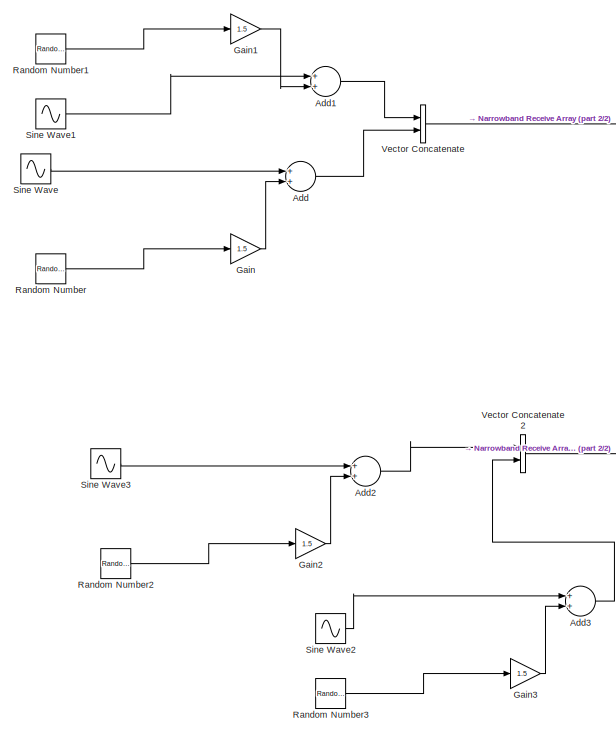
[diagram: root canvas - part 1/2, left side, full height]
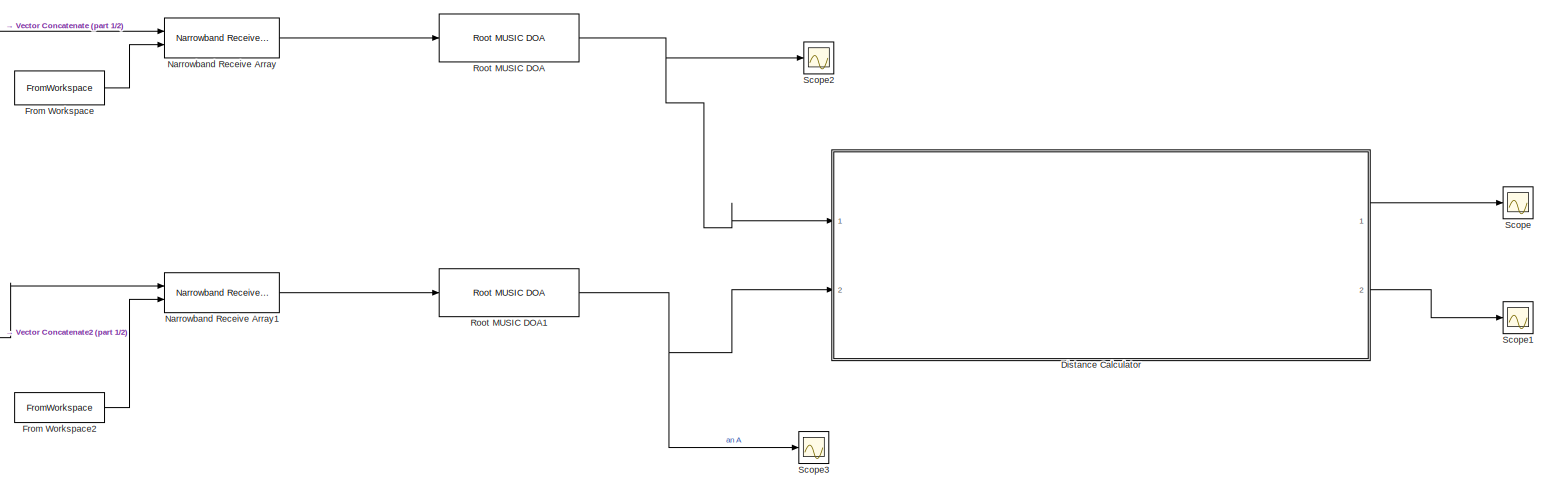
[diagram: root canvas - part 2/2, central region]
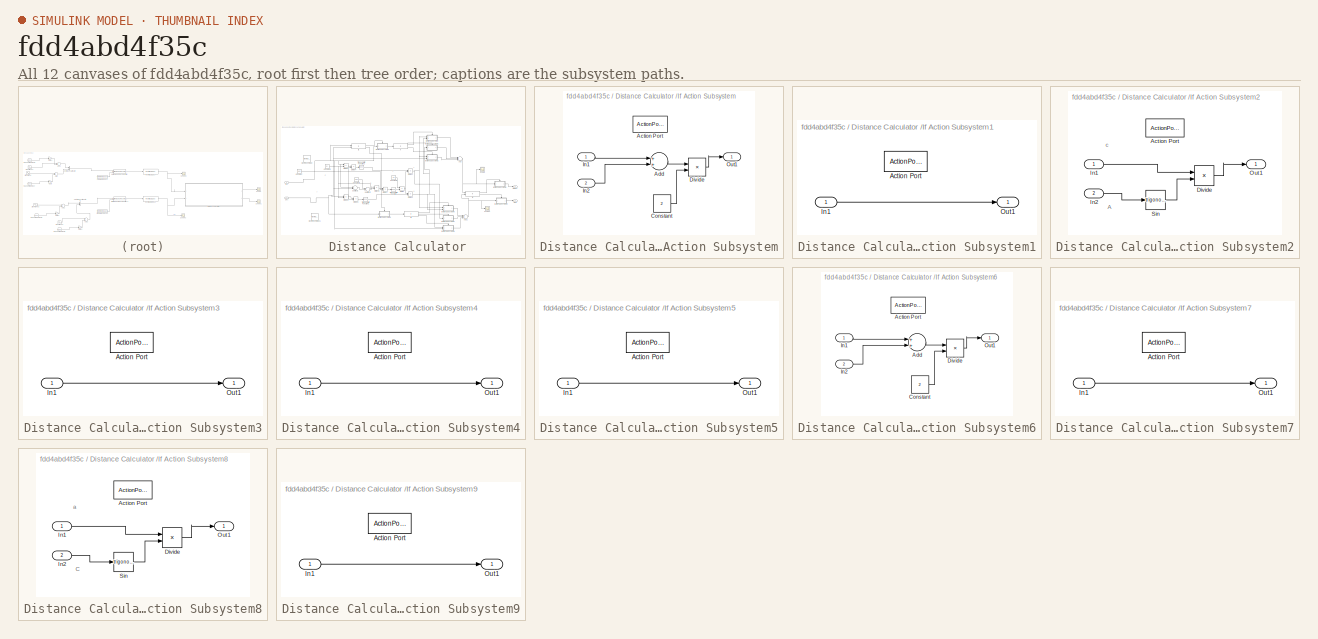
[diagram: thumbnail index - all 12 canvases of the model, root first then tree order]
MODEL slx_fdd4abd4f35c
KIND model
CONFIG AbsTol = auto
CONFIG EnableMultiTasking = off
CONFIG FixedStep = auto
CONFIG MaxStep = auto
CONFIG MinStep = auto
CONFIG RelTol = 1e-3
CONFIG SampleTimeConstraint = Unconstrained
CONFIG Solver = VariableStepAuto
CONFIG SolverName = VariableStepAuto
CONFIG StartTime = 0.0
CONFIG StopTime = 10.0
BLOCK [Sum] Add
  InputSameDT = off
  OutDataTypeStr = Inherit: Inherit via internal rule
  Ports = [2, 1]
  SaturateOnIntegerOverflow = off
BLOCK [Sum] Add1
  InputSameDT = off
  OutDataTypeStr = Inherit: Inherit via internal rule
  Ports = [2, 1]
  SaturateOnIntegerOverflow = off
BLOCK [Sum] Add2
  InputSameDT = off
  OutDataTypeStr = Inherit: Inherit via internal rule
  Ports = [2, 1]
  SaturateOnIntegerOverflow = off
BLOCK [Sum] Add3
  InputSameDT = off
  OutDataTypeStr = Inherit: Inherit via internal rule
  Ports = [2, 1]
  SaturateOnIntegerOverflow = off
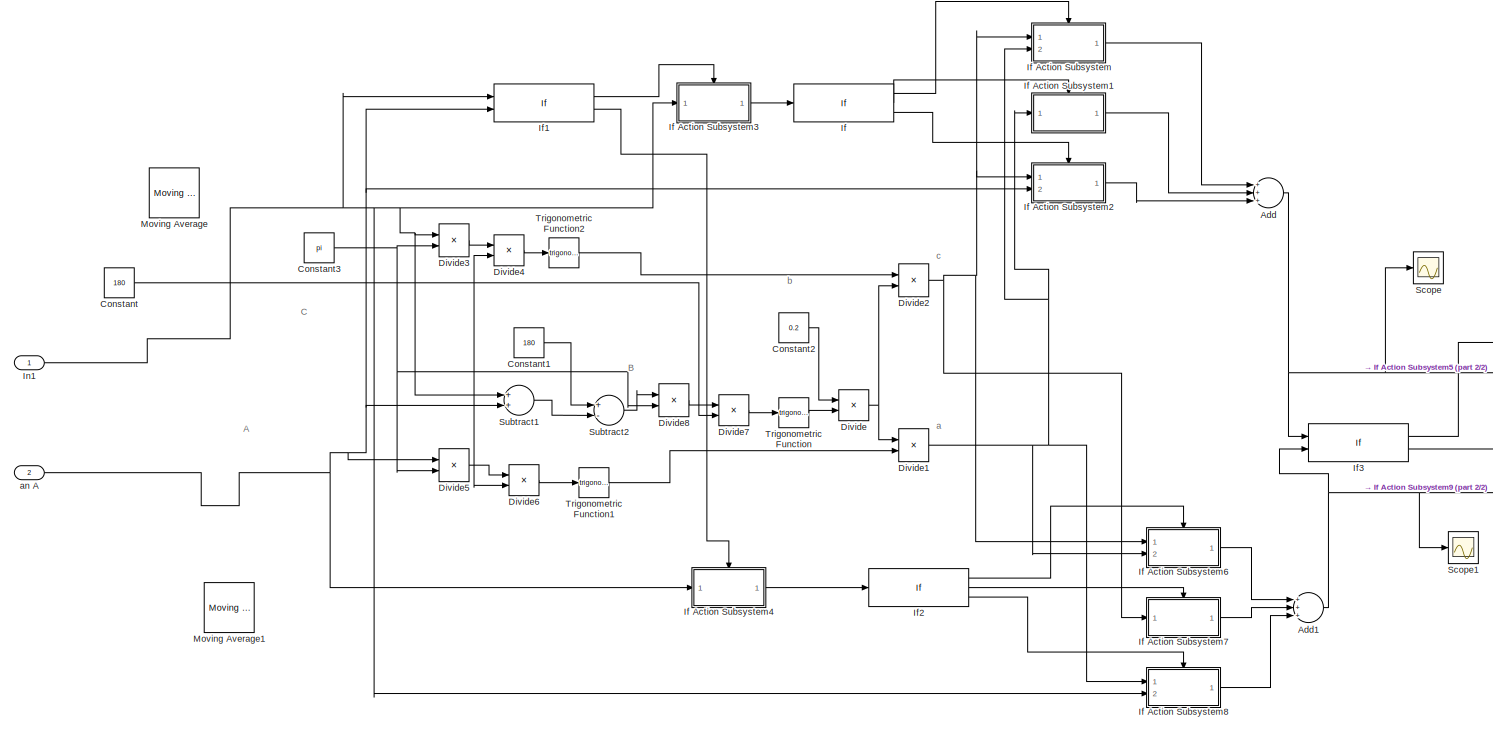
[diagram: Distance Calculator  - part 1/2, most of the canvas]
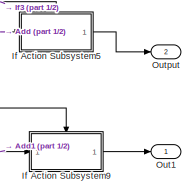
[diagram: Distance Calculator  - part 2/2, middle right region]
BLOCK [SubSystem] Distance Calculator 
  Ports = [2, 2]
  RequestExecContextInheritance = off
BLOCK [Sum] Distance Calculator /Add
  InputSameDT = off
  Inputs = +++
  OutDataTypeStr = Inherit: Inherit via internal rule
  Ports = [3, 1]
  SaturateOnIntegerOverflow = off
BLOCK [Sum] Distance Calculator /Add1
  InputSameDT = off
  Inputs = +++
  OutDataTypeStr = Inherit: Inherit via internal rule
  Ports = [3, 1]
  SaturateOnIntegerOverflow = off
BLOCK [Constant] Distance Calculator /Constant
  Value = 180
BLOCK [Constant] Distance Calculator /Constant1
  Value = 180
BLOCK [Constant] Distance Calculator /Constant2
  Value = 0.2
BLOCK [Constant] Distance Calculator /Constant3
  Value = pi
BLOCK [Product] Distance Calculator /Divide
  InputSameDT = off
  Inputs = */
  OutDataTypeStr = Inherit: Inherit via internal rule
  Ports = [2, 1]
  RndMeth = Floor
  SaturateOnIntegerOverflow = off
BLOCK [Product] Distance Calculator /Divide1
  InputSameDT = off
  Inputs = **
  OutDataTypeStr = Inherit: Inherit via internal rule
  Ports = [2, 1]
  RndMeth = Floor
  SaturateOnIntegerOverflow = off
BLOCK [Product] Distance Calculator /Divide2
  InputSameDT = off
  Inputs = **
  OutDataTypeStr = Inherit: Inherit via internal rule
  Ports = [2, 1]
  RndMeth = Floor
  SaturateOnIntegerOverflow = off
BLOCK [Product] Distance Calculator /Divide3
  InputSameDT = off
  Inputs = **
  OutDataTypeStr = Inherit: Inherit via internal rule
  Ports = [2, 1]
  RndMeth = Floor
  SaturateOnIntegerOverflow = off
BLOCK [Product] Distance Calculator /Divide4
  InputSameDT = off
  Inputs = */
  OutDataTypeStr = Inherit: Inherit via internal rule
  Ports = [2, 1]
  RndMeth = Floor
  SaturateOnIntegerOverflow = off
BLOCK [Product] Distance Calculator /Divide5
  InputSameDT = off
  Inputs = **
  OutDataTypeStr = Inherit: Inherit via internal rule
  Ports = [2, 1]
  RndMeth = Floor
  SaturateOnIntegerOverflow = off
BLOCK [Product] Distance Calculator /Divide6
  InputSameDT = off
  Inputs = */
  OutDataTypeStr = Inherit: Inherit via internal rule
  Ports = [2, 1]
  RndMeth = Floor
  SaturateOnIntegerOverflow = off
BLOCK [Product] Distance Calculator /Divide7
  InputSameDT = off
  Inputs = */
  OutDataTypeStr = Inherit: Inherit via internal rule
  Ports = [2, 1]
  RndMeth = Floor
  SaturateOnIntegerOverflow = off
BLOCK [Product] Distance Calculator /Divide8
  InputSameDT = off
  Inputs = **
  OutDataTypeStr = Inherit: Inherit via internal rule
  Ports = [2, 1]
  RndMeth = Floor
  SaturateOnIntegerOverflow = off
BLOCK [If] Distance Calculator /If
  ElseIfExpressions = u1 == 90
  IfExpression = u1 > 90
  Ports = [1, 3]
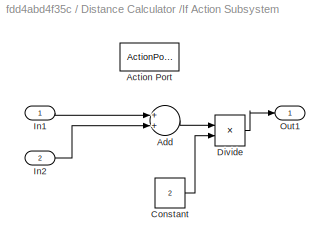
BLOCK [SubSystem] Distance Calculator /If Action Subsystem
  Ports = [2, 1, 0, 0, 0, 0, 0, 1]
  RequestExecContextInheritance = off
  TreatAsAtomicUnit = on
BLOCK [ActionPort] Distance Calculator /If Action Subsystem/Action Port
  ActionPortLabel = if(u1 > 90)
  InitializeStates = reset
BLOCK [Sum] Distance Calculator /If Action Subsystem/Add
  InputSameDT = off
  OutDataTypeStr = Inherit: Inherit via internal rule
  Ports = [2, 1]
  SaturateOnIntegerOverflow = off
BLOCK [Constant] Distance Calculator /If Action Subsystem/Constant
  Value = 2
BLOCK [Product] Distance Calculator /If Action Subsystem/Divide
  InputSameDT = off
  Inputs = */
  OutDataTypeStr = Inherit: Inherit via internal rule
  Ports = [2, 1]
  RndMeth = Floor
  SaturateOnIntegerOverflow = off
BLOCK [Inport] Distance Calculator /If Action Subsystem/In1
  IconDisplay = Port number
BLOCK [Inport] Distance Calculator /If Action Subsystem/In2
  IconDisplay = Port number
  Port = 2
BLOCK [Outport] Distance Calculator /If Action Subsystem/Out1
  IconDisplay = Port number
BLOCK [SubSystem] Distance Calculator /If Action Subsystem1
  Ports = [1, 1, 0, 0, 0, 0, 0, 1]
  RequestExecContextInheritance = off
  TreatAsAtomicUnit = on
BLOCK [ActionPort] Distance Calculator /If Action Subsystem1/Action Port
  ActionPortLabel = elseif(u1 == 90)
  InitializeStates = reset
BLOCK [Inport] Distance Calculator /If Action Subsystem1/In1
  IconDisplay = Port number
BLOCK [Outport] Distance Calculator /If Action Subsystem1/Out1
  IconDisplay = Port number
BLOCK [SubSystem] Distance Calculator /If Action Subsystem2
  Ports = [2, 1, 0, 0, 0, 0, 0, 1]
  RequestExecContextInheritance = off
  TreatAsAtomicUnit = on
BLOCK [ActionPort] Distance Calculator /If Action Subsystem2/Action Port
  ActionPortLabel = else
  InitializeStates = reset
BLOCK [Product] Distance Calculator /If Action Subsystem2/Divide
  InputSameDT = off
  Inputs = **
  OutDataTypeStr = Inherit: Inherit via internal rule
  Ports = [2, 1]
  RndMeth = Floor
  SaturateOnIntegerOverflow = off
BLOCK [Inport] Distance Calculator /If Action Subsystem2/In1
  IconDisplay = Port number
BLOCK [Inport] Distance Calculator /If Action Subsystem2/In2
  IconDisplay = Port number
  Port = 2
BLOCK [Outport] Distance Calculator /If Action Subsystem2/Out1
  IconDisplay = Port number
BLOCK [Trigonometry] Distance Calculator /If Action Subsystem2/Sin
  Ports = [1, 1]
BLOCK [SubSystem] Distance Calculator /If Action Subsystem3
  Ports = [1, 1, 0, 0, 0, 0, 0, 1]
  RequestExecContextInheritance = off
  TreatAsAtomicUnit = on
BLOCK [ActionPort] Distance Calculator /If Action Subsystem3/Action Port
  ActionPortLabel = if(u1 > u2)
  InitializeStates = reset
BLOCK [Inport] Distance Calculator /If Action Subsystem3/In1
  IconDisplay = Port number
BLOCK [Outport] Distance Calculator /If Action Subsystem3/Out1
  IconDisplay = Port number
BLOCK [SubSystem] Distance Calculator /If Action Subsystem4
  Ports = [1, 1, 0, 0, 0, 0, 0, 1]
  RequestExecContextInheritance = off
  TreatAsAtomicUnit = on
BLOCK [ActionPort] Distance Calculator /If Action Subsystem4/Action Port
  ActionPortLabel = elseif(u2 > u1)
  InitializeStates = reset
BLOCK [Inport] Distance Calculator /If Action Subsystem4/In1
  IconDisplay = Port number
BLOCK [Outport] Distance Calculator /If Action Subsystem4/Out1
  IconDisplay = Port number
BLOCK [SubSystem] Distance Calculator /If Action Subsystem5
  Ports = [1, 1, 0, 0, 0, 0, 0, 1]
  RequestExecContextInheritance = off
  TreatAsAtomicUnit = on
BLOCK [ActionPort] Distance Calculator /If Action Subsystem5/Action Port
  ActionPortLabel = if(u1 > 0)
BLOCK [Inport] Distance Calculator /If Action Subsystem5/In1
  IconDisplay = Port number
BLOCK [Outport] Distance Calculator /If Action Subsystem5/Out1
  IconDisplay = Port number
BLOCK [SubSystem] Distance Calculator /If Action Subsystem6
  Ports = [2, 1, 0, 0, 0, 0, 0, 1]
  RequestExecContextInheritance = off
  TreatAsAtomicUnit = on
BLOCK [ActionPort] Distance Calculator /If Action Subsystem6/Action Port
  ActionPortLabel = if(u1 > 90)
  InitializeStates = reset
BLOCK [Sum] Distance Calculator /If Action Subsystem6/Add
  InputSameDT = off
  OutDataTypeStr = Inherit: Inherit via internal rule
  Ports = [2, 1]
  SaturateOnIntegerOverflow = off
BLOCK [Constant] Distance Calculator /If Action Subsystem6/Constant
  Value = 2
BLOCK [Product] Distance Calculator /If Action Subsystem6/Divide
  InputSameDT = off
  Inputs = */
  OutDataTypeStr = Inherit: Inherit via internal rule
  Ports = [2, 1]
  RndMeth = Floor
  SaturateOnIntegerOverflow = off
BLOCK [Inport] Distance Calculator /If Action Subsystem6/In1
  IconDisplay = Port number
BLOCK [Inport] Distance Calculator /If Action Subsystem6/In2
  IconDisplay = Port number
  Port = 2
BLOCK [Outport] Distance Calculator /If Action Subsystem6/Out1
  IconDisplay = Port number
BLOCK [SubSystem] Distance Calculator /If Action Subsystem7
  Ports = [1, 1, 0, 0, 0, 0, 0, 1]
  RequestExecContextInheritance = off
  TreatAsAtomicUnit = on
BLOCK [ActionPort] Distance Calculator /If Action Subsystem7/Action Port
  ActionPortLabel = elseif(u1 == 90)
  InitializeStates = reset
BLOCK [Inport] Distance Calculator /If Action Subsystem7/In1
  IconDisplay = Port number
BLOCK [Outport] Distance Calculator /If Action Subsystem7/Out1
  IconDisplay = Port number
BLOCK [SubSystem] Distance Calculator /If Action Subsystem8
  Ports = [2, 1, 0, 0, 0, 0, 0, 1]
  RequestExecContextInheritance = off
  TreatAsAtomicUnit = on
BLOCK [ActionPort] Distance Calculator /If Action Subsystem8/Action Port
  ActionPortLabel = else
  InitializeStates = reset
BLOCK [Product] Distance Calculator /If Action Subsystem8/Divide
  InputSameDT = off
  Inputs = **
  OutDataTypeStr = Inherit: Inherit via internal rule
  Ports = [2, 1]
  RndMeth = Floor
  SaturateOnIntegerOverflow = off
BLOCK [Inport] Distance Calculator /If Action Subsystem8/In1
  IconDisplay = Port number
BLOCK [Inport] Distance Calculator /If Action Subsystem8/In2
  IconDisplay = Port number
  Port = 2
BLOCK [Outport] Distance Calculator /If Action Subsystem8/Out1
  IconDisplay = Port number
BLOCK [Trigonometry] Distance Calculator /If Action Subsystem8/Sin
  Ports = [1, 1]
BLOCK [SubSystem] Distance Calculator /If Action Subsystem9
  Ports = [1, 1, 0, 0, 0, 0, 0, 1]
  RequestExecContextInheritance = off
  TreatAsAtomicUnit = on
BLOCK [ActionPort] Distance Calculator /If Action Subsystem9/Action Port
  ActionPortLabel = elseif(u2 > 0)
BLOCK [Inport] Distance Calculator /If Action Subsystem9/In1
  IconDisplay = Port number
BLOCK [Outport] Distance Calculator /If Action Subsystem9/Out1
  IconDisplay = Port number
BLOCK [If] Distance Calculator /If1
  ElseIfExpressions = u2 > u1
  IfExpression = u1 > u2
  NumInputs = 2
  Ports = [2, 2]
  ShowElse = off
BLOCK [If] Distance Calculator /If2
  ElseIfExpressions = u1 == 90
  IfExpression = u1 > 90
  Ports = [1, 3]
BLOCK [If] Distance Calculator /If3
  ElseIfExpressions = u2 > 0
  NumInputs = 2
  Ports = [2, 2]
  ShowElse = off
BLOCK [Inport] Distance Calculator /In1
  IconDisplay = Port number
BLOCK [Reference] Distance Calculator /Moving Average  REF=dspstat3/Moving
Average
  Commented = on
  Ports = [1, 1]
  SourceBlock = dspstat3/Moving\nAverage
  SourceProductBaseCode = DS
  SourceProductName = DSP System Toolbox
  SourceType = dsp.simulink.MovingAverage
BLOCK [Reference] Distance Calculator /Moving Average1  REF=dspstat3/Moving
Average
  Commented = on
  Ports = [1, 1]
  SourceBlock = dspstat3/Moving\nAverage
  SourceProductBaseCode = DS
  SourceProductName = DSP System Toolbox
  SourceType = dsp.simulink.MovingAverage
BLOCK [Outport] Distance Calculator /Out1
  IconDisplay = Port number
BLOCK [Outport] Distance Calculator /Output
  IconDisplay = Port number
  Port = 2
BLOCK [Scope] Distance Calculator /Scope
  Floating = off
  NumInputPorts = 1
  Ports = [1]
  ScopeSpecificationString = Simulink.scopes.TimeScopeBlockCfg('CurrentConfiguration', extmgr.ConfigurationSet(extmgr.Configuration('Core','General UI',true),extmgr.Configuration('Core','Source UI',true),extmgr.Configuration('Sources','WiredSimulink',true,'DataLoggingVariableName','ScopeData1'),extmgr.Configuration('Visuals','Time Domain',true,'SerializedDisplays',{struct('MinYLimReal','-1.41241','MaxYLimReal','12.71169','YLa...<+1366ch>
BLOCK [Scope] Distance Calculator /Scope1
  Floating = off
  NumInputPorts = 1
  Ports = [1]
  ScopeSpecificationString = Simulink.scopes.TimeScopeBlockCfg('CurrentConfiguration', extmgr.ConfigurationSet(extmgr.Configuration('Core','General UI',true),extmgr.Configuration('Core','Source UI',true),extmgr.Configuration('Sources','WiredSimulink',true,'DataLoggingVariableName','ScopeData2'),extmgr.Configuration('Visuals','Time Domain',true,'SerializedDisplays',{struct('MinYLimReal','-1.4289','MaxYLimReal','12.86009','YLab...<+1365ch>
BLOCK [Sum] Distance Calculator /Subtract1
  InputSameDT = off
  OutDataTypeStr = Inherit: Inherit via internal rule
  Ports = [2, 1]
  SaturateOnIntegerOverflow = off
BLOCK [Sum] Distance Calculator /Subtract2
  InputSameDT = off
  Inputs = +-
  OutDataTypeStr = Inherit: Inherit via internal rule
  Ports = [2, 1]
  SaturateOnIntegerOverflow = off
BLOCK [Trigonometry] Distance Calculator /Trigonometric Function
  Ports = [1, 1]
BLOCK [Trigonometry] Distance Calculator /Trigonometric Function1
  OutputSignalType = real
  Ports = [1, 1]
BLOCK [Trigonometry] Distance Calculator /Trigonometric Function2
  OutputSignalType = real
  Ports = [1, 1]
BLOCK [Inport] Distance Calculator /an A
  IconDisplay = Port number
  Port = 2
BLOCK [FromWorkspace] From Workspace
  SampleTime = 1
  VariableName = Signal_Directions
  ZeroCross = on
BLOCK [FromWorkspace] From Workspace2
  SampleTime = 1
  VariableName = Signal_Directions1
  ZeroCross = on
BLOCK [Gain] Gain
  Gain = 1.5
  OutDataTypeStr = Inherit: Inherit via internal rule
  ParamDataTypeStr = Inherit: Inherit via internal rule
  SaturateOnIntegerOverflow = off
BLOCK [Gain] Gain1
  Gain = 1.5
  OutDataTypeStr = Inherit: Inherit via internal rule
  ParamDataTypeStr = Inherit: Inherit via internal rule
  SaturateOnIntegerOverflow = off
BLOCK [Gain] Gain2
  Gain = 1.5
  OutDataTypeStr = Inherit: Inherit via internal rule
  ParamDataTypeStr = Inherit: Inherit via internal rule
  SaturateOnIntegerOverflow = off
BLOCK [Gain] Gain3
  Gain = 1.5
  OutDataTypeStr = Inherit: Inherit via internal rule
  ParamDataTypeStr = Inherit: Inherit via internal rule
  SaturateOnIntegerOverflow = off
BLOCK [Reference] Narrowband Receive Array  REF=phasedtxrxlib/Narrowband Receive Array
  Ports = [2, 1]
  SourceBlock = phasedtxrxlib/Narrowband Receive Array
  SourceProductBaseCode = AR
  SourceProductName = Phased Array System Toolbox
  SourceType = phased.Collector
BLOCK [Reference] Narrowband Receive Array1  REF=phasedtxrxlib/Narrowband Receive Array
  Ports = [2, 1]
  SourceBlock = phasedtxrxlib/Narrowband Receive Array
  SourceProductBaseCode = AR
  SourceProductName = Phased Array System Toolbox
  SourceType = phased.Collector
BLOCK [RandomNumber] Random Number
  SampleTime = 0
  Variance = 0.25
BLOCK [RandomNumber] Random Number1
  SampleTime = 0
  Variance = 0.25
BLOCK [RandomNumber] Random Number2
  SampleTime = 0
  Variance = 0.25
BLOCK [RandomNumber] Random Number3
  SampleTime = 0
  Variance = 0.25
BLOCK [Reference] Root MUSIC DOA  REF=phaseddoalib/Root MUSIC DOA
  Ports = [1, 1]
  SourceBlock = phaseddoalib/Root MUSIC DOA
  SourceProductBaseCode = AR
  SourceProductName = Phased Array System Toolbox
  SourceType = phased.RootMUSICEstimator
BLOCK [Reference] Root MUSIC DOA1  REF=phaseddoalib/Root MUSIC DOA
  Ports = [1, 1]
  SourceBlock = phaseddoalib/Root MUSIC DOA
  SourceProductBaseCode = AR
  SourceProductName = Phased Array System Toolbox
  SourceType = phased.RootMUSICEstimator
BLOCK [Scope] Scope
  Floating = off
  NumInputPorts = 1
  Ports = [1]
  ScopeSpecificationString = Simulink.scopes.TimeScopeBlockCfg('CurrentConfiguration', extmgr.ConfigurationSet(extmgr.Configuration('Core','General UI',true),extmgr.Configuration('Core','Source UI',true),extmgr.Configuration('Sources','WiredSimulink',true,'DataLogging',true,'DataLoggingVariableName','dist1','DataLoggingSaveFormat','StructureWithTime'),extmgr.Configuration('Visuals','Time Domain',true,'SerializedDisplays',{str...<+1483ch>
BLOCK [Scope] Scope1
  Floating = off
  NumInputPorts = 1
  Ports = [1]
  ScopeSpecificationString = Simulink.scopes.TimeScopeBlockCfg('CurrentConfiguration', extmgr.ConfigurationSet(extmgr.Configuration('Core','General UI',true),extmgr.Configuration('Core','Source UI',true),extmgr.Configuration('Sources','WiredSimulink',true,'DataLoggingVariableName','dist2','DataLogging',true,'DataLoggingSaveFormat','StructureWithTime'),extmgr.Configuration('Visuals','Time Domain',true,'SerializedDisplays',{str...<+1548ch>
BLOCK [Scope] Scope2
  Floating = off
  NumInputPorts = 1
  Ports = [1]
  ScopeSpecificationString = Simulink.scopes.TimeScopeBlockCfg('CurrentConfiguration', extmgr.ConfigurationSet(extmgr.Configuration('Core','General UI',true),extmgr.Configuration('Core','Source UI',true),extmgr.Configuration('Sources','WiredSimulink',true,'DataLoggingVariableName','ScopeData4'),extmgr.Configuration('Visuals','Time Domain',true,'SerializedDisplays',{struct('MinYLimReal','89.2248','MaxYLimReal','89.97584','YLab...<+1394ch>
BLOCK [Scope] Scope3
  Floating = off
  NumInputPorts = 1
  Ports = [1]
  ScopeSpecificationString = Simulink.scopes.TimeScopeBlockCfg('CurrentConfiguration', extmgr.ConfigurationSet(extmgr.Configuration('Core','General UI',true),extmgr.Configuration('Core','Source UI',true),extmgr.Configuration('Sources','WiredSimulink',true,'DataLoggingVariableName','ScopeData5'),extmgr.Configuration('Visuals','Time Domain',true,'SerializedDisplays',{struct('MinYLimReal','89.11231','MaxYLimReal','89.98838','YLa...<+1388ch>
BLOCK [Sin] Sine Wave
  Amplitude = 0.8
  Frequency = 1067
  Ports = [0, 1]
  SampleTime = 0
BLOCK [Sin] Sine Wave1
  Frequency = 1067
  Ports = [0, 1]
  SampleTime = 0
BLOCK [Sin] Sine Wave2
  Amplitude = 0.7
  Frequency = 1067
  Ports = [0, 1]
  SampleTime = 0
BLOCK [Sin] Sine Wave3
  Amplitude = 0.8
  Frequency = 1067
  Ports = [0, 1]
  SampleTime = 0
BLOCK [Concatenate] Vector Concatenate
  Ports = [2, 1]
BLOCK [Concatenate] Vector Concatenate2
  Ports = [2, 1]
ANNOTATION Distance Calculator : A
ANNOTATION Distance Calculator : B
ANNOTATION Distance Calculator : C
ANNOTATION Distance Calculator : a
ANNOTATION Distance Calculator : b
ANNOTATION Distance Calculator : c
ANNOTATION Distance Calculator /If Action Subsystem2: A
ANNOTATION Distance Calculator /If Action Subsystem2: c
ANNOTATION Distance Calculator /If Action Subsystem8: C
ANNOTATION Distance Calculator /If Action Subsystem8: a
LINE Add1:1 -> Vector Concatenate:1
LINE Add2:1 -> Vector Concatenate2:1
LINE Add3:1 -> Vector Concatenate2:2
LINE Add:1 -> Vector Concatenate:2
NET Distance Calculator /Add1:1 -> Distance Calculator /If Action Subsystem9:1, Distance Calculator /If3:2, Distance Calculator /Scope1:1
NET Distance Calculator /Add:1 -> Distance Calculator /If Action Subsystem5:1, Distance Calculator /If3:1, Distance Calculator /Scope:1
LINE Distance Calculator /Constant1:1 -> Distance Calculator /Subtract2:1
LINE Distance Calculator /Constant2:1 -> Distance Calculator /Divide:1
NET Distance Calculator /Constant3:1 -> Distance Calculator /Divide3:2, Distance Calculator /Divide5:2, Distance Calculator /Divide8:2
NET Distance Calculator /Constant:1 -> Distance Calculator /Divide4:2, Distance Calculator /Divide6:2, Distance Calculator /Divide7:2
NET Distance Calculator /Divide1:1 -> Distance Calculator /If Action Subsystem1:1, Distance Calculator /If Action Subsystem6:2, Distance Calculator /If Action Subsystem8:1, Distance Calculator /If Action Subsystem:2
NET Distance Calculator /Divide2:1 -> Distance Calculator /If Action Subsystem2:1, Distance Calculator /If Action Subsystem6:1, Distance Calculator /If Action Subsystem7:1, Distance Calculator /If Action Subsystem:1
LINE Distance Calculator /Divide3:1 -> Distance Calculator /Divide4:1
LINE Distance Calculator /Divide4:1 -> Distance Calculator /Trigonometric Function2:1
LINE Distance Calculator /Divide5:1 -> Distance Calculator /Divide6:1
LINE Distance Calculator /Divide6:1 -> Distance Calculator /Trigonometric Function1:1
LINE Distance Calculator /Divide7:1 -> Distance Calculator /Trigonometric Function:1
LINE Distance Calculator /Divide8:1 -> Distance Calculator /Divide7:1
NET Distance Calculator /Divide:1 -> Distance Calculator /Divide1:1, Distance Calculator /Divide2:2
LINE Distance Calculator /If Action Subsystem/Add:1 -> Distance Calculator /If Action Subsystem/Divide:1
LINE Distance Calculator /If Action Subsystem/Constant:1 -> Distance Calculator /If Action Subsystem/Divide:2
LINE Distance Calculator /If Action Subsystem/Divide:1 -> Distance Calculator /If Action Subsystem/Out1:1
LINE Distance Calculator /If Action Subsystem/In1:1 -> Distance Calculator /If Action Subsystem/Add:1
LINE Distance Calculator /If Action Subsystem/In2:1 -> Distance Calculator /If Action Subsystem/Add:2
LINE Distance Calculator /If Action Subsystem1/In1:1 -> Distance Calculator /If Action Subsystem1/Out1:1
LINE Distance Calculator /If Action Subsystem1:1 -> Distance Calculator /Add:2
LINE Distance Calculator /If Action Subsystem2/Divide:1 -> Distance Calculator /If Action Subsystem2/Out1:1
LINE Distance Calculator /If Action Subsystem2/In1:1 -> Distance Calculator /If Action Subsystem2/Divide:1
LINE Distance Calculator /If Action Subsystem2/In2:1 -> Distance Calculator /If Action Subsystem2/Sin:1
LINE Distance Calculator /If Action Subsystem2/Sin:1 -> Distance Calculator /If Action Subsystem2/Divide:2
LINE Distance Calculator /If Action Subsystem2:1 -> Distance Calculator /Add:3
LINE Distance Calculator /If Action Subsystem3/In1:1 -> Distance Calculator /If Action Subsystem3/Out1:1
LINE Distance Calculator /If Action Subsystem3:1 -> Distance Calculator /If:1
LINE Distance Calculator /If Action Subsystem4/In1:1 -> Distance Calculator /If Action Subsystem4/Out1:1
LINE Distance Calculator /If Action Subsystem4:1 -> Distance Calculator /If2:1
LINE Distance Calculator /If Action Subsystem5/In1:1 -> Distance Calculator /If Action Subsystem5/Out1:1
LINE Distance Calculator /If Action Subsystem5:1 -> Distance Calculator /Output:1
LINE Distance Calculator /If Action Subsystem6/Add:1 -> Distance Calculator /If Action Subsystem6/Divide:1
LINE Distance Calculator /If Action Subsystem6/Constant:1 -> Distance Calculator /If Action Subsystem6/Divide:2
LINE Distance Calculator /If Action Subsystem6/Divide:1 -> Distance Calculator /If Action Subsystem6/Out1:1
LINE Distance Calculator /If Action Subsystem6/In1:1 -> Distance Calculator /If Action Subsystem6/Add:1
LINE Distance Calculator /If Action Subsystem6/In2:1 -> Distance Calculator /If Action Subsystem6/Add:2
LINE Distance Calculator /If Action Subsystem6:1 -> Distance Calculator /Add1:1
LINE Distance Calculator /If Action Subsystem7/In1:1 -> Distance Calculator /If Action Subsystem7/Out1:1
LINE Distance Calculator /If Action Subsystem7:1 -> Distance Calculator /Add1:2
LINE Distance Calculator /If Action Subsystem8/Divide:1 -> Distance Calculator /If Action Subsystem8/Out1:1
LINE Distance Calculator /If Action Subsystem8/In1:1 -> Distance Calculator /If Action Subsystem8/Divide:1
LINE Distance Calculator /If Action Subsystem8/In2:1 -> Distance Calculator /If Action Subsystem8/Sin:1
LINE Distance Calculator /If Action Subsystem8/Sin:1 -> Distance Calculator /If Action Subsystem8/Divide:2
LINE Distance Calculator /If Action Subsystem8:1 -> Distance Calculator /Add1:3
LINE Distance Calculator /If Action Subsystem9/In1:1 -> Distance Calculator /If Action Subsystem9/Out1:1
LINE Distance Calculator /If Action Subsystem9:1 -> Distance Calculator /Out1:1
LINE Distance Calculator /If Action Subsystem:1 -> Distance Calculator /Add:1
LINE Distance Calculator /If1:1 -> Distance Calculator /If Action Subsystem3:ifaction
LINE Distance Calculator /If1:2 -> Distance Calculator /If Action Subsystem4:ifaction
LINE Distance Calculator /If2:1 -> Distance Calculator /If Action Subsystem6:ifaction
LINE Distance Calculator /If2:2 -> Distance Calculator /If Action Subsystem7:ifaction
LINE Distance Calculator /If2:3 -> Distance Calculator /If Action Subsystem8:ifaction
LINE Distance Calculator /If3:1 -> Distance Calculator /If Action Subsystem5:ifaction
LINE Distance Calculator /If3:2 -> Distance Calculator /If Action Subsystem9:ifaction
LINE Distance Calculator /If:1 -> Distance Calculator /If Action Subsystem:ifaction
LINE Distance Calculator /If:2 -> Distance Calculator /If Action Subsystem1:ifaction
LINE Distance Calculator /If:3 -> Distance Calculator /If Action Subsystem2:ifaction
NET Distance Calculator /In1:1 -> Distance Calculator /Divide3:1, Distance Calculator /If Action Subsystem3:1, Distance Calculator /If Action Subsystem8:2, Distance Calculator /If1:1, Distance Calculator /Subtract1:1
LINE Distance Calculator /Subtract1:1 -> Distance Calculator /Subtract2:2
LINE Distance Calculator /Subtract2:1 -> Distance Calculator /Divide8:1
LINE Distance Calculator /Trigonometric Function1:1 -> Distance Calculator /Divide1:2
LINE Distance Calculator /Trigonometric Function2:1 -> Distance Calculator /Divide2:1
LINE Distance Calculator /Trigonometric Function:1 -> Distance Calculator /Divide:2
NET Distance Calculator /an A:1 -> Distance Calculator /Divide5:1, Distance Calculator /If Action Subsystem2:2, Distance Calculator /If Action Subsystem4:1, Distance Calculator /If1:2, Distance Calculator /Subtract1:2
LINE Distance Calculator :1 -> Scope:1
LINE Distance Calculator :2 -> Scope1:1
LINE From Workspace2:1 -> Narrowband Receive Array1:2
LINE From Workspace:1 -> Narrowband Receive Array:2
LINE Gain1:1 -> Add1:2
LINE Gain2:1 -> Add2:2
LINE Gain3:1 -> Add3:2
LINE Gain:1 -> Add:2
LINE Narrowband Receive Array1:1 -> Root MUSIC DOA1:1
LINE Narrowband Receive Array:1 -> Root MUSIC DOA:1
LINE Random Number1:1 -> Gain1:1
LINE Random Number2:1 -> Gain2:1
LINE Random Number3:1 -> Gain3:1
LINE Random Number:1 -> Gain:1
NET Root MUSIC DOA1:1 -> Distance Calculator :2, Scope3:1
NET Root MUSIC DOA:1 -> Distance Calculator :1, Scope2:1
LINE Sine Wave1:1 -> Add1:1
LINE Sine Wave2:1 -> Add3:1
LINE Sine Wave3:1 -> Add2:1
LINE Sine Wave:1 -> Add:1
LINE Vector Concatenate2:1 -> Narrowband Receive Array1:1
LINE Vector Concatenate:1 -> Narrowband Receive Array:1
note: NET lines group one-source signal fan-out (src -> all destinations, sorted); 1:1 wires keep LINE
